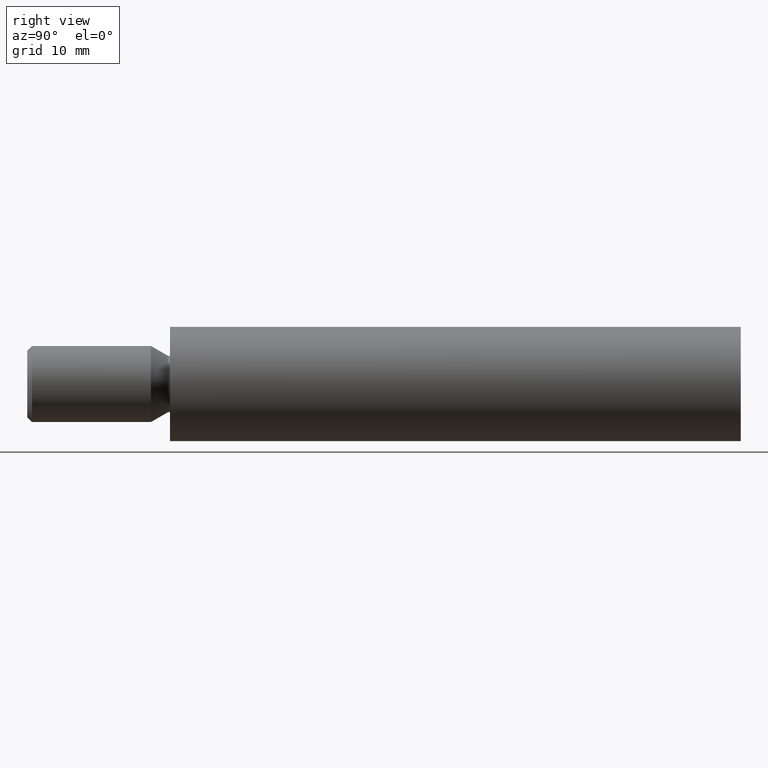
[diagram: clean part render]
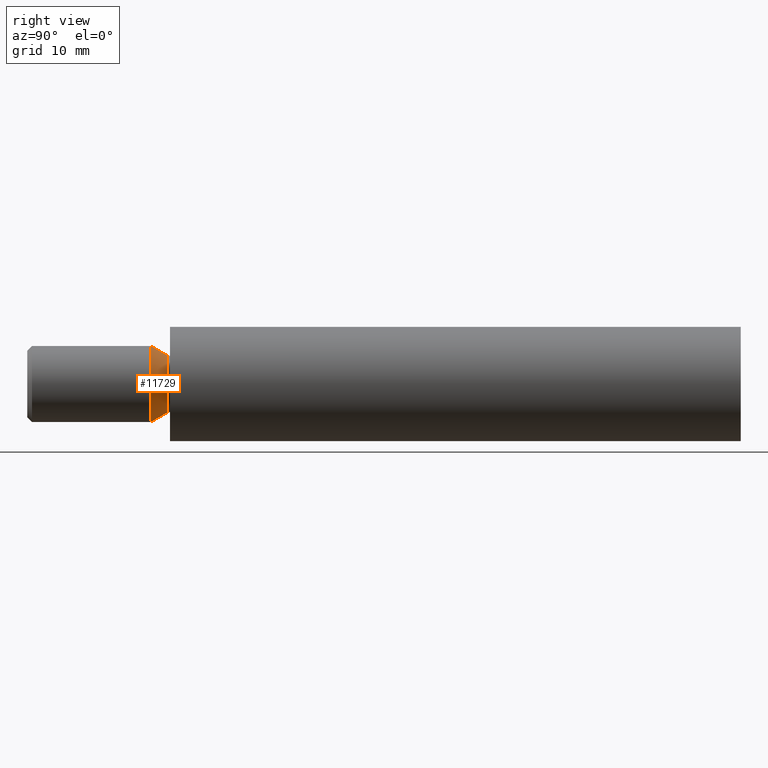
[diagram: same view with one face highlighted and labeled with its STEP entity id]
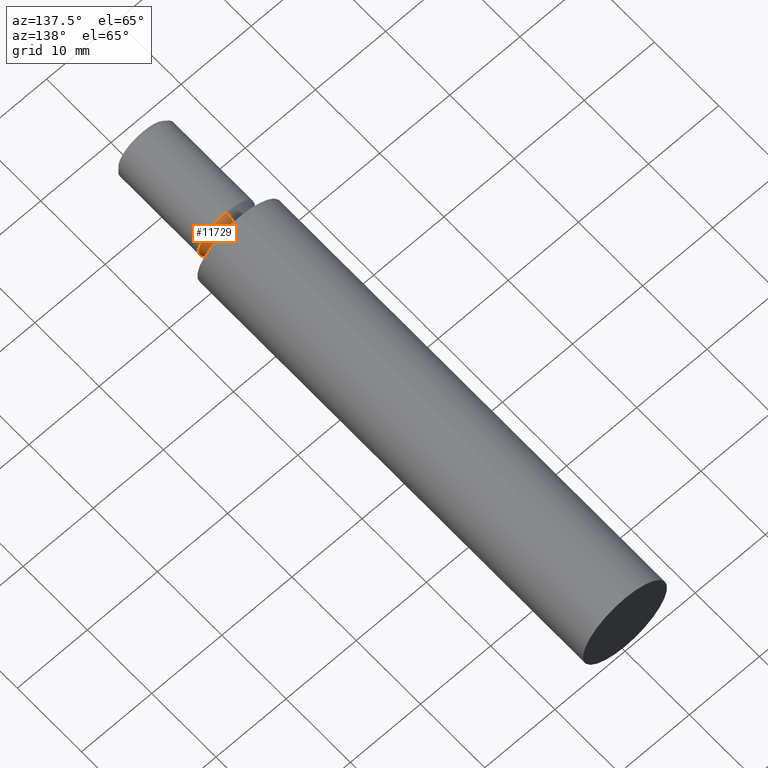
[diagram: same view with one face highlighted and labeled with its STEP entity id]
A machine part, right view. The second image highlights one B-rep face of the part: STEP entity #11729.
A second angle (auxiliary view) of the same face is appended — the face is thin or edge-on in the first view.
In plain terms, the highlighted conical surface has half-angle 30 deg.
Its self-contained STEP definition (entity closure, byte-faithful):
#184 = CARTESIAN_POINT ( 'NONE',  ( 0.0000000000000000000, -0.2679491924311300200, -3.000000000000000000 ) ) ;
#503 = CARTESIAN_POINT ( 'NONE',  ( 4.898587196589412800E-016, -2.000000000000000000, 4.000000000000000000 ) ) ;
#814 = VERTEX_POINT ( 'NONE', #4653 ) ;
#977 = ORIENTED_EDGE ( 'NONE', *, *, #2719, .F. ) ;
#1130 = LINE ( 'NONE', #13974, #4153 ) ;
#1192 = CARTESIAN_POINT ( 'NONE',  ( 0.0000000000000000000, -2.000000000000000000, 0.0000000000000000000 ) ) ;
#1235 = DIRECTION ( 'NONE',  ( 0.0000000000000000000, 0.0000000000000000000, -1.000000000000000000 ) ) ;
#1487 = AXIS2_PLACEMENT_3D ( 'NONE', #1192, #3373, #1235 ) ;
#1715 = FACE_OUTER_BOUND ( 'NONE', #3073, .T. ) ;
#1813 = ORIENTED_EDGE ( 'NONE', *, *, #14703, .F. ) ;
#1856 = VECTOR ( 'NONE', #12012, 1000.000000000000200 ) ;
#2027 = LINE ( 'NONE', #503, #1856 ) ;
#2719 = EDGE_CURVE ( 'NONE', #12679, #9846, #9949, .T. ) ;
#2736 = DIRECTION ( 'NONE',  ( -0.0000000000000000000, -1.000000000000000000, -0.0000000000000000000 ) ) ;
#3073 = EDGE_LOOP ( 'NONE', ( #5161, #9088, #977, #1813 ) ) ;
#3373 = DIRECTION ( 'NONE',  ( -0.0000000000000000000, -1.000000000000000000, -0.0000000000000000000 ) ) ;
#3794 = DIRECTION ( 'NONE',  ( 0.0000000000000000000, 0.0000000000000000000, -1.000000000000000000 ) ) ;
#3928 = DIRECTION ( 'NONE',  ( 0.0000000000000000000, -0.8660254037844377100, -0.5000000000000015500 ) ) ;
#4075 = AXIS2_PLACEMENT_3D ( 'NONE', #5022, #9728, #7463 ) ;
#4153 = VECTOR ( 'NONE', #3928, 1000.000000000000200 ) ;
#4653 = CARTESIAN_POINT ( 'NONE',  ( 4.286263797015736600E-016, -0.2679491924311300200, 3.000000000000000000 ) ) ;
#5022 = CARTESIAN_POINT ( 'NONE',  ( 0.0000000000000000000, -0.2679491924311300200, 0.0000000000000000000 ) ) ;
#5161 = ORIENTED_EDGE ( 'NONE', *, *, #13641, .T. ) ;
#7463 = DIRECTION ( 'NONE',  ( 0.0000000000000000000, 0.0000000000000000000, -1.000000000000000000 ) ) ;
#7815 = VERTEX_POINT ( 'NONE', #184 ) ;
#9088 = ORIENTED_EDGE ( 'NONE', *, *, #14321, .T. ) ;
#9728 = DIRECTION ( 'NONE',  ( -0.0000000000000000000, -1.000000000000000000, -0.0000000000000000000 ) ) ;
#9846 = VERTEX_POINT ( 'NONE', #10586 ) ;
#9949 = CIRCLE ( 'NONE', #10818, 4.000000000000000000 ) ;
#10105 = CONICAL_SURFACE ( 'NONE', #1487, 4.000000000000000000, 0.5235987755983007000 ) ;
#10586 = CARTESIAN_POINT ( 'NONE',  ( 4.898587196589413800E-016, -2.000000000000000000, 4.000000000000000000 ) ) ;
#10651 = CIRCLE ( 'NONE', #4075, 3.000000000000000000 ) ;
#10818 = AXIS2_PLACEMENT_3D ( 'NONE', #12022, #2736, #3794 ) ;
#11729 = ADVANCED_FACE ( 'NONE', ( #1715 ), #10105, .T. ) ;
#11922 = CARTESIAN_POINT ( 'NONE',  ( 0.0000000000000000000, -2.000000000000000000, -4.000000000000000000 ) ) ;
#12012 = DIRECTION ( 'NONE',  ( 6.123233995736783300E-017, -0.8660254037844377100, 0.5000000000000015500 ) ) ;
#12022 = CARTESIAN_POINT ( 'NONE',  ( 0.0000000000000000000, -2.000000000000000000, 0.0000000000000000000 ) ) ;
#12679 = VERTEX_POINT ( 'NONE', #11922 ) ;
#13641 = EDGE_CURVE ( 'NONE', #7815, #814, #10651, .T. ) ;
#13974 = CARTESIAN_POINT ( 'NONE',  ( 0.0000000000000000000, -2.000000000000000000, -4.000000000000000000 ) ) ;
#14321 = EDGE_CURVE ( 'NONE', #814, #9846, #2027, .T. ) ;
#14703 = EDGE_CURVE ( 'NONE', #7815, #12679, #1130, .T. ) ;